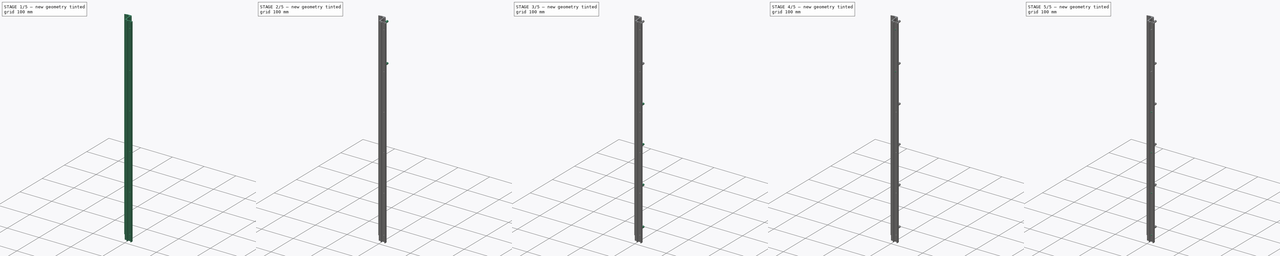
[diagram: build sequence overview — one tinted view per stage of 5, left to right]
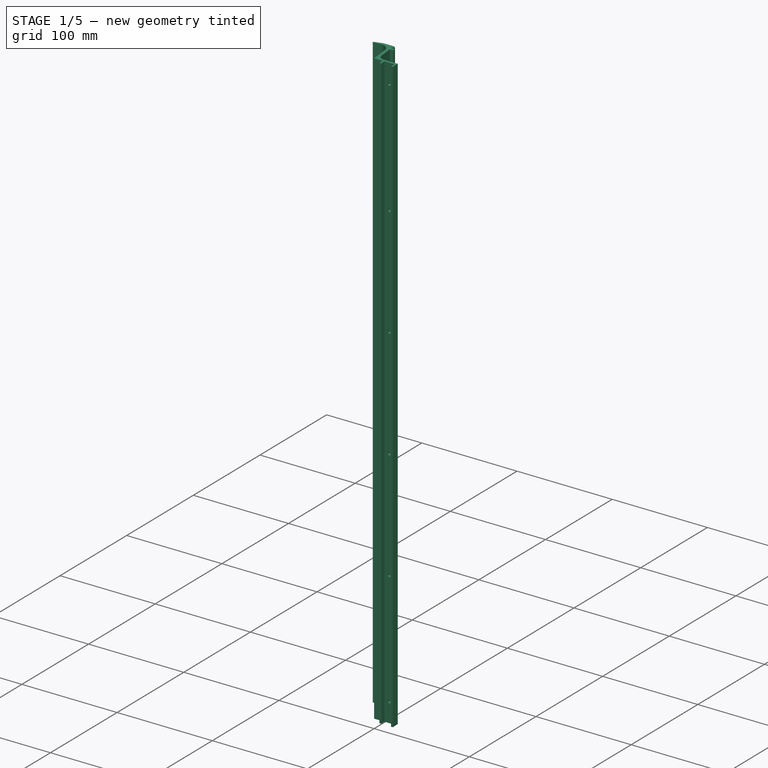
[diagram: stage 1 of 5 — iso view after this stage's code; geometry added in this stage tinted green]
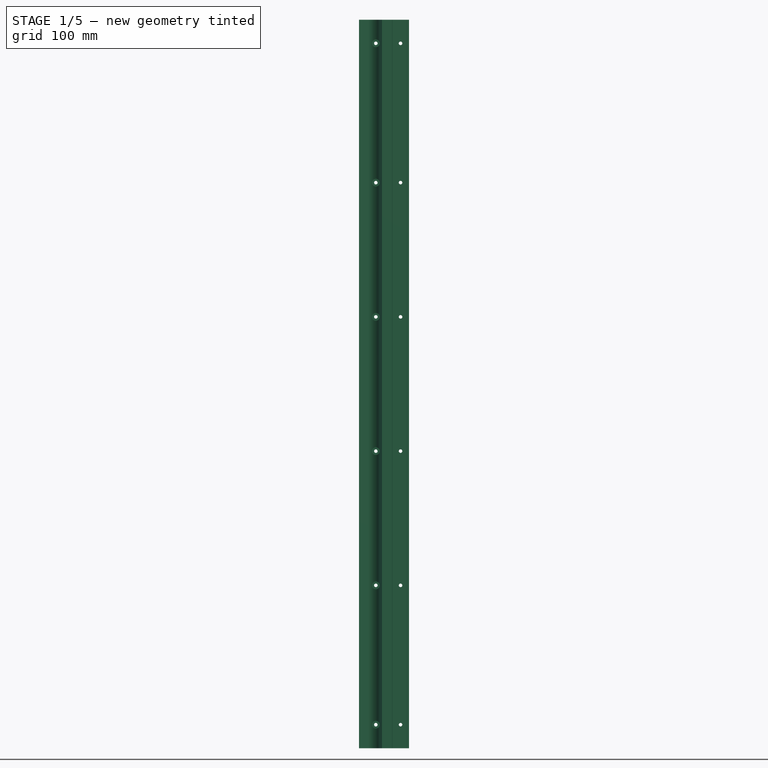
[diagram: stage 1 of 5 — front view after this stage's code; geometry added in this stage tinted green]
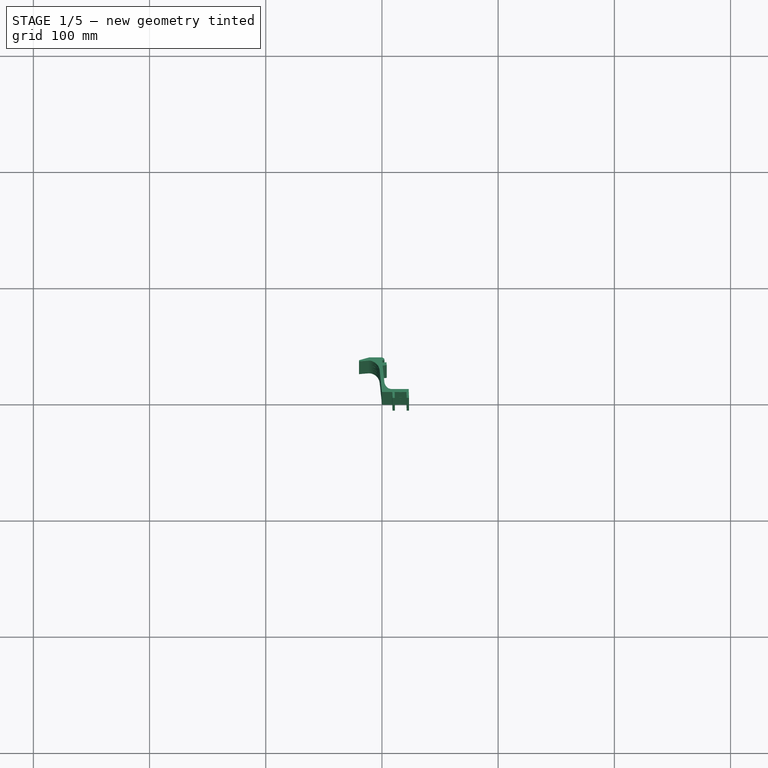
[diagram: stage 1 of 5 — top view after this stage's code; geometry added in this stage tinted green]
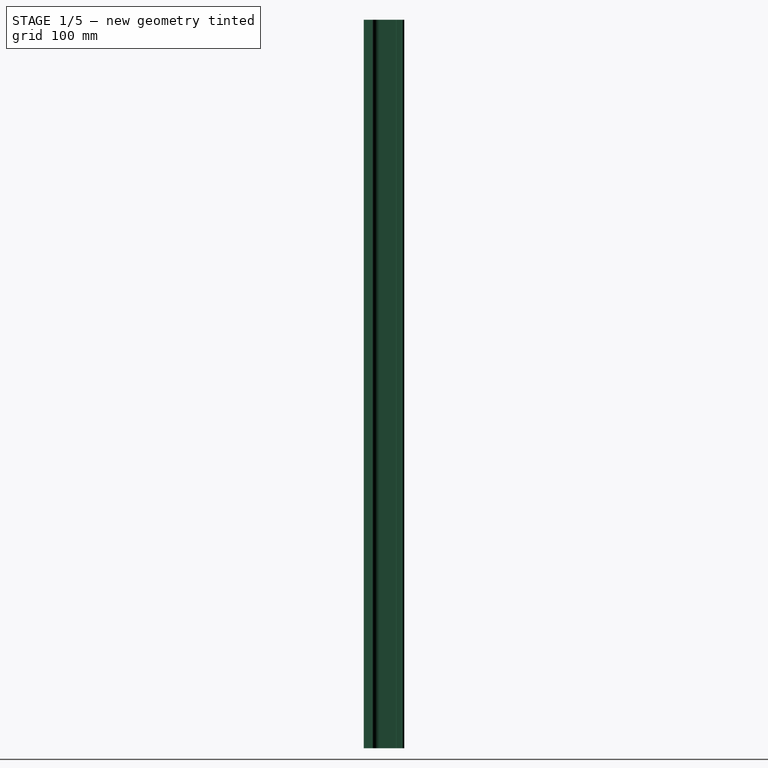
[diagram: stage 1 of 5 — right view after this stage's code; geometry added in this stage tinted green]
FCSTD DOCUMENT  (FreeCAD 1.0R39319 (Git))
Label: Extrusion
License: All rights reserved
LicenseURL: https://en.wikipedia.org/wiki/All_rights_reserved
objects: Part::FeaturePython×22, Sketcher::SketchObject×5, PartDesign::Pocket×4, PartDesign::Pad×1, Part::Part2DObjectPython×1, PartDesign::Body×1, Part::Extrusion×1, App::Part×1, App::DocumentObjectGroup×1
note: 50 computed .brp shape members not serialized (recipe doc carries the construction recipe); baked Part::Feature solids carry a one-line shape summary decoded from their .brp

FEATURE [Sketcher::SketchObject] Sketch  label="Sketch - Side profile"
  ArcFitTolerance = 1e-06
  FullyConstrained = true
  MakeInternals = false
  sketch-geometry (32):
    g0: LineSegment StartX=0 StartY=0 StartZ=0 EndX=8.89 EndY=0 EndZ=0
    g1: LineSegment StartX=8.89 StartY=0 StartZ=0 EndX=9.06729 EndY=-5.07691 EndZ=0
    g2: LineSegment StartX=9.06729 StartY=-5.07691 StartZ=0 EndX=11.0993 EndY=-5.07691 EndZ=0
    g3: LineSegment StartX=11.0993 StartY=-5.07691 StartZ=0 EndX=10.922 EndY=0 EndZ=0
    g4: LineSegment StartX=10.922 StartY=0 StartZ=0 EndX=21.082 EndY=0 EndZ=0
    g5: LineSegment StartX=21.082 StartY=0 StartZ=0 EndX=21.2593 EndY=-5.07691 EndZ=0
    g6: LineSegment StartX=21.2593 StartY=-5.07691 StartZ=0 EndX=23.2913 EndY=-5.07691 EndZ=0
    g7: LineSegment StartX=23.0254 StartY=2.53845 StartZ=0 EndX=8.72877 EndY=2.53845 EndZ=0
    g8: LineSegment StartX=3.86347 StartY=25.6444 StartZ=0 EndX=0.32677 EndY=25.2744 EndZ=0
    g9: LineSegment StartX=0.32677 StartY=25.2744 StartZ=0 EndX=0.11534 EndY=27.2953 EndZ=0
    g10: LineSegment StartX=0.11534 StartY=27.2953 StartZ=0 EndX=2.13631 EndY=27.5068 EndZ=0
    g11: LineSegment StartX=2.13631 StartY=27.5068 StartZ=0 EndX=2.0306 EndY=28.5173 EndZ=0
    g12: LineSegment StartX=2.0306 StartY=28.5173 StartZ=0 EndX=0.45205 EndY=29.7968 EndZ=0
    g13: LineSegment StartX=0.45205 StartY=29.7968 StartZ=0 EndX=-10.978 EndY=29.7968 EndZ=0
    g14: LineSegment StartX=-10.978 StartY=29.7968 StartZ=0 EndX=-19.7807 EndY=27.322 EndZ=0
    g15: LineSegment StartX=-19.7807 StartY=27.322 StartZ=0 EndX=-19.7807 EndY=26.306 EndZ=0
    g16: LineSegment StartX=-19.7807 StartY=26.306 StartZ=0 EndX=-11.4639 EndY=27.0305 EndZ=0
    g17: LineSegment StartX=-11.4639 StartY=27.0305 StartZ=0 EndX=-11.3281 EndY=27.0305 EndZ=0
    g18: LineSegment StartX=23.0254 StartY=2.53845 StartZ=0 EndX=23.2913 EndY=-5.07691 EndZ=0
    g19: LineSegment StartX=0 StartY=0 StartZ=0 EndX=-1.94342 EndY=18.5764 EndZ=0
    g20: LineSegment StartX=3.86347 StartY=25.6444 StartZ=0 EndX=4.12776 EndY=23.1182 EndZ=0
    g21: LineSegment StartX=0.591057 StartY=22.7482 StartZ=0 EndX=2.07862 EndY=8.52917 EndZ=0
    g22: LineSegment StartX=0.591057 StartY=22.7482 StartZ=0 EndX=4.12776 EndY=23.1182 EndZ=0
    g23: LineSegment [constr] StartX=4.12776 StartY=23.1182 StartZ=0 EndX=23.0254 EndY=2.53845 EndZ=0
    g24: LineSegment [constr] StartX=-19.7807 StartY=26.306 StartZ=0 EndX=0 EndY=0 EndZ=0
    g25: LineSegment [constr] StartX=2.0306 StartY=28.5173 StartZ=0 EndX=-19.7807 EndY=27.322 EndZ=0
    g26: ArcOfCircle CenterX=8.72877 CenterY=9.22489 CenterZ=0 NormalX=0 NormalY=0 NormalZ=1 AngleXU=0 Radius=6.68644 StartAngle=3.24583 EndAngle=4.71239
    g27: GeomPoint [constr] X=2.70536 Y=2.53845 Z=0
    g28: LineSegment [constr] StartX=8.72877 StartY=9.22489 StartZ=0 EndX=2.70536 EndY=2.53845 EndZ=0
    g29: ArcOfCircle CenterX=-11.3281 CenterY=17.5946 CenterZ=0 NormalX=0 NormalY=0 NormalZ=1 AngleXU=0 Radius=9.4359 StartAngle=0.104239 EndAngle=1.5708
    g30: GeomPoint [constr] X=-2.82787 Y=27.0305 Z=0
    g31: LineSegment [constr] StartX=-2.82787 StartY=27.0305 StartZ=0 EndX=-11.3281 EndY=17.5946 EndZ=0
  constraints (89):
    c: Coincident(g0,g-1)
    c: Coincident(g1,g0)
    c: Coincident(g2,g1)
    c: Coincident(g3,g2)
    c: Coincident(g4,g3)
    c: Coincident(g5,g4)
    c: Coincident(g6,g5)
    c: Horizontal(g6)
    c: Horizontal(g7)
    c: Coincident(g9,g8)
    c: Coincident(g10,g9)
    c: Coincident(g11,g10)
    c: Coincident(g13,g12)
    c: Horizontal(g13)
    c: Coincident(g14,g13)
    c: Coincident(g15,g14)
    c: Coincident(g16,g15)
    c: Coincident(g17,g16)
    c: Horizontal(g17)
    c: DistanceX(g2,g2) = 2.032
    c: Equal(g2,g6)
    c: Distance(g0) = 8.89
    c: Horizontal(g4)
    c: Horizontal(g2)
    c: Horizontal(g0)
    c: Distance(g1) = 5.08
    c: Angle(g0,g1) = 1.6057
    c: Angle(g4,g5) = 1.6057
    c: Parallel(g1,g3)
    c: Equal(g3,g1)
    c: Equal(g5,g1)
    c: Coincident(g18,g7)
    c: Coincident(g18,g6)
    c: Distance(g18) = 7.62
    c: Distance(g1,g5) = 12.192
    c: Parallel(g18,g5)
    c: DistanceX(g27,g7) = 20.32
    c: Coincident(g19,g0)
    c: Coincident(g20,g8)
    c: Distance(g21,g27) = 20.32
    c: Parallel(g19,g21)
    c: Distance(g20,g21) = 3.556
    c: Distance(g20,g20) = 2.54
    c: Parallel(g9,g19)
    c: Parallel(g20,g19)
    c: Coincident(g22,g21)
    c: Coincident(g22,g20)
    c: Equal(g8,g22)
    c: Angle(g21,g22) = 1.5708
    c: Distance(g9,g9) = 2.032
    c: Angle(g8,g9) = 1.5708
    c: Distance(g19,g30) = 27.178
    c: Coincident(g23,g20)
    c: Coincident(g23,g7)
    c: Distance(g23,g23) = 27.94
    c: Parallel(g8,g10)
    c: Distance(g10,g10) = 2.032
    c: Distance(g11,g11) = 1.016
    c: Coincident(g12,g11)
    c: Parallel(g21,g11)
    c: Angle(g10,g12) = 2.35619
    c: Distance(g12,g12) = 2.032
    c: DistanceX(g13,g13) = 11.43
    c: Distance(g14,g14) = 9.144
    c: Distance(g15,g15) = 1.016
    c: Distance(g17,g30) = 8.636
    c: Parallel(g15,g-2)
    c: Coincident(g24,g15)
    c: Coincident(g24,g0)
    c: Distance(g24,g24) = 32.9132
    c: Coincident(g25,g11)
    c: Coincident(g25,g14)
    c: Distance(g25,g25) = 21.844
    c: PointOnObject(g27,g21)
    c: PointOnObject(g27,g7)
    c: Tangent(g21,g26) = -1.5708
    c: Tangent(g7,g26) = 1.5708
    c: Distance(g26,g0) = 12.7
    c: Coincident(g28,g26)
    c: Coincident(g28,g27)
    c: PointOnObject(g30,g17)
    c: PointOnObject(g30,g19)
    c: Tangent(g17,g29) = 1.5708
    c: Tangent(g19,g29) = -1.5708
    c: Coincident(g31,g30)
    c: Coincident(g31,g29)
    c: Distance(g31,g31) = 12.7
    c: DistanceX(g2,g5) = 10.16
    c: Distance(g0,g3) = 10.922
FEATURE [PartDesign::Pad] Pad  label="Pad - Body Length"
  Direction = (0,0,1)
  Length = 627
  Length2 = 10
  Profile = -> Sketch
  ReferenceAxis = -> Sketch [N_Axis]
  Refine = true
  Suppressed = false
  Type = 0
FEATURE [Sketcher::SketchObject] Sketch001  label="Mounting Holes"
  ArcFitTolerance = 1e-06
  AttachmentSupport = -> [Pad]
  ExternalGeometry = -> [Sketch,Pad]
  FullyConstrained = true
  MakeInternals = false
  MapMode = 5
  Placement = pos=(0,0,0) rot=(1,0,0;1.5708rad)
  sketch-geometry (19):
    g0: LineSegment [constr] StartX=10.922 StartY=0 StartZ=0 EndX=21.082 EndY=0 EndZ=0
    g1: LineSegment [constr] StartX=21.082 StartY=0 StartZ=0 EndX=21.082 EndY=627 EndZ=0
    g2: LineSegment [constr] StartX=10.922 StartY=627 StartZ=0 EndX=10.922 EndY=0 EndZ=0
    g3: Circle CenterX=16.002 CenterY=20.32 CenterZ=0 NormalX=0 NormalY=0 NormalZ=1 AngleXU=0 Radius=1.524
    g4: Circle CenterX=16.002 CenterY=140.208 CenterZ=0 NormalX=0 NormalY=0 NormalZ=1 AngleXU=0 Radius=1.524
    g5: Circle CenterX=16.002 CenterY=255.736 CenterZ=0 NormalX=0 NormalY=0 NormalZ=1 AngleXU=0 Radius=1.524
    g6: Circle CenterX=16.002 CenterY=371.264 CenterZ=0 NormalX=0 NormalY=0 NormalZ=1 AngleXU=0 Radius=1.524
    g7: Circle CenterX=16.002 CenterY=486.792 CenterZ=0 NormalX=0 NormalY=0 NormalZ=1 AngleXU=0 Radius=1.524
    g8: Circle CenterX=16.002 CenterY=606.68 CenterZ=0 NormalX=0 NormalY=0 NormalZ=1 AngleXU=0 Radius=1.524
    g9: LineSegment [constr] StartX=16.002 StartY=140.208 StartZ=0 EndX=16.002 EndY=20.32 EndZ=0
    g10: LineSegment [constr] StartX=10.922 StartY=627 StartZ=0 EndX=16.002 EndY=627 EndZ=0
    g11: LineSegment [constr] StartX=21.082 StartY=627 StartZ=0 EndX=16.002 EndY=627 EndZ=0
    g12: LineSegment [constr] StartX=16.002 StartY=20.32 StartZ=0 EndX=16.002 EndY=140.208 EndZ=0
    g13: LineSegment [constr] StartX=16.002 StartY=20.32 StartZ=0 EndX=16.002 EndY=0 EndZ=0
    g14: LineSegment [constr] StartX=16.002 StartY=140.208 StartZ=0 EndX=16.002 EndY=255.736 EndZ=0
    g15: LineSegment [constr] StartX=16.002 StartY=255.736 StartZ=0 EndX=16.002 EndY=371.264 EndZ=0
    g16: LineSegment [constr] StartX=16.002 StartY=371.264 StartZ=0 EndX=16.002 EndY=486.792 EndZ=0
    g17: LineSegment [constr] StartX=16.002 StartY=606.68 StartZ=0 EndX=16.002 EndY=627 EndZ=0
    g18: LineSegment [constr] StartX=16.002 StartY=486.792 StartZ=0 EndX=16.002 EndY=606.68 EndZ=0
  constraints (50):
    c: Vertical(g1)
    c: Coincident(g2,g0)
    c: Coincident(g0,g1)
    c: Coincident(g0,g-3)
    c: Radius(g3) = 1.524  'screwHoleRad'
    c: DistanceY(g8,g10) = 20.32
    c: Coincident(g9,g4)
    c: Coincident(g9,g3)
    c: Coincident(g10,g2)
    c: Horizontal(g10)
    c: Coincident(g11,g1)
    c: Horizontal(g11)
    c: Equal(g10,g11)
    c: Equal(g3,g4)
    c: Equal(g4,g5)
    c: Coincident(g12,g3)
    c: Coincident(g12,g4)
    c: Coincident(g13,g3)
    c: Symmetric(g0,g0,g13)
    c: Vertical(g13)
    c: Coincident(g14,g4)
    c: Coincident(g14,g5)
    c: Vertical(g14)
    c: Coincident(g15,g5)
    c: Coincident(g15,g6)
    c: Vertical(g15)
    c: Coincident(g16,g6)
    c: Coincident(g16,g7)
    c: Vertical(g16)
    c: Vertical(g9)
    c: DistanceY(g13,g13) = 20.32
    c: DistanceY(g9,g9) = 119.888
    c: Coincident(g11,g10)
    c: Coincident(g17,g8)
    c: Coincident(g17,g10)
    c: Vertical(g17)
    c: Coincident(g18,g7)
    c: Coincident(g18,g8)
    c: DistanceY(g7,g8) = 119.888
    c: DistanceY(g6,g7) = 115.528
    c: DistanceY(g5,g6) = 115.528
    c: DistanceY(g4,g5) = 115.528
    c: Equal(g9,g18)
    c: Equal(g16,g15)
    c: Equal(g15,g14)
    c: Equal(g6,g7)
    c: Equal(g7,g8)
    c: Equal(g8,g5)
    c: Coincident(g2,g-4)
    c: Coincident(g0,g-3)
FEATURE [PartDesign::Pocket] Pocket
  BaseFeature = -> Pad
  Direction = (0,1,-2e-16)
  Length = 5
  Length2 = 5
  Profile = -> Sketch001
  ReferenceAxis = -> Sketch001 [N_Axis]
  Refine = true
  Suppressed = false
  Type = 1
FEATURE [Sketcher::SketchObject] Sketch002  label="Spacer Holes"
  ArcFitTolerance = 1e-06
  AttachmentSupport = -> [Pocket]
  ExternalGeometry = -> [Pocket]
  FullyConstrained = true
  MakeInternals = false
  MapMode = 5
  Placement = pos=(0,29.7968,0) rot=(0,0.707107,0.707107;3.14159rad)
  sketch-geometry (19):
    g0: LineSegment [constr] StartX=-0.45205 StartY=0 StartZ=0 EndX=10.978 EndY=0 EndZ=0
    g1: LineSegment [constr] StartX=10.978 StartY=0 StartZ=0 EndX=10.978 EndY=627 EndZ=0
    g2: LineSegment [constr] StartX=-0.45205 StartY=627 StartZ=0 EndX=-0.45205 EndY=0 EndZ=0
    g3: Circle CenterX=5.26295 CenterY=20.32 CenterZ=0 NormalX=0 NormalY=0 NormalZ=1 AngleXU=0 Radius=1.524
    g4: Circle CenterX=5.26295 CenterY=140.208 CenterZ=0 NormalX=0 NormalY=0 NormalZ=1 AngleXU=0 Radius=1.524
    g5: Circle CenterX=5.26295 CenterY=255.736 CenterZ=0 NormalX=0 NormalY=0 NormalZ=1 AngleXU=0 Radius=1.524
    g6: Circle CenterX=5.26295 CenterY=371.264 CenterZ=0 NormalX=0 NormalY=0 NormalZ=1 AngleXU=0 Radius=1.524
    g7: Circle CenterX=5.26295 CenterY=486.792 CenterZ=0 NormalX=0 NormalY=0 NormalZ=1 AngleXU=0 Radius=1.524
    g8: Circle CenterX=5.26295 CenterY=606.68 CenterZ=0 NormalX=0 NormalY=0 NormalZ=1 AngleXU=0 Radius=1.524
    g9: LineSegment [constr] StartX=5.26295 StartY=140.208 StartZ=0 EndX=5.26295 EndY=20.32 EndZ=0
    g10: LineSegment [constr] StartX=-0.45205 StartY=627 StartZ=0 EndX=5.26295 EndY=627 EndZ=0
    g11: LineSegment [constr] StartX=10.978 StartY=627 StartZ=0 EndX=5.26295 EndY=627 EndZ=0
    g12: LineSegment [constr] StartX=5.26295 StartY=20.32 StartZ=0 EndX=5.26295 EndY=140.208 EndZ=0
    g13: LineSegment [constr] StartX=5.26295 StartY=20.32 StartZ=0 EndX=5.26295 EndY=0 EndZ=0
    g14: LineSegment [constr] StartX=5.26295 StartY=140.208 StartZ=0 EndX=5.26295 EndY=255.736 EndZ=0
    g15: LineSegment [constr] StartX=5.26295 StartY=255.736 StartZ=0 EndX=5.26295 EndY=371.264 EndZ=0
    g16: LineSegment [constr] StartX=5.26295 StartY=371.264 StartZ=0 EndX=5.26295 EndY=486.792 EndZ=0
    g17: LineSegment [constr] StartX=5.26295 StartY=606.68 StartZ=0 EndX=5.26295 EndY=627 EndZ=0
    g18: LineSegment [constr] StartX=5.26295 StartY=486.792 StartZ=0 EndX=5.26295 EndY=606.68 EndZ=0
  constraints (50):
    c: Vertical(g1)
    c: Coincident(g2,g0)
    c: Coincident(g0,g1)
    c: Radius(g3) = 1.524  'screwHoleRad'
    c: DistanceY(g8,g10) = 20.32
    c: Coincident(g9,g4)
    c: Coincident(g9,g3)
    c: Coincident(g10,g2)
    c: Horizontal(g10)
    c: Coincident(g11,g1)
    c: Horizontal(g11)
    c: Equal(g10,g11)
    c: Equal(g3,g4)
    c: Equal(g4,g5)
    c: Coincident(g12,g3)
    c: Coincident(g12,g4)
    c: Coincident(g13,g3)
    c: Symmetric(g0,g0,g13)
    c: Coincident(g14,g4)
    c: Coincident(g14,g5)
    c: Vertical(g14)
    c: Coincident(g15,g5)
    c: Coincident(g15,g6)
    c: Vertical(g15)
    c: Coincident(g16,g6)
    c: Coincident(g16,g7)
    c: Vertical(g16)
    c: Vertical(g9)
    c: DistanceY(g13,g13) = 20.32
    c: DistanceY(g9,g9) = 119.888
    c: Coincident(g11,g10)
    c: Coincident(g17,g8)
    c: Coincident(g17,g10)
    c: Vertical(g17)
    c: Coincident(g18,g7)
    c: Coincident(g18,g8)
    c: DistanceY(g7,g8) = 119.888
    c: DistanceY(g6,g7) = 115.528
    c: DistanceY(g5,g6) = 115.528
    c: DistanceY(g4,g5) = 115.528
    c: Equal(g9,g18)
    c: Equal(g16,g15)
    c: Equal(g15,g14)
    c: Equal(g6,g7)
    c: Equal(g7,g8)
    c: Equal(g8,g5)
    c: Coincident(g0,g-3)
    c: Coincident(g0,g-4)
    c: Coincident(g2,g-4)
    c: Vertical(g13)
FEATURE [PartDesign::Pocket] Pocket001  label="Spacer holes pocket"
  BaseFeature = -> Pocket
  Direction = (0,-1,2e-16)
  Length = 5
  Length2 = 5
  Profile = -> Sketch002
  ReferenceAxis = -> Sketch002 [N_Axis]
  Refine = true
  Suppressed = false
  Type = 1
FEATURE [Sketcher::SketchObject] Sketch003  label="Spacer Holes Counter Bore"
  ArcFitTolerance = 1e-06
  AttachmentOffset = pos=(0,0,-11.43) rot=(0,0,1;0rad)
  AttachmentSupport = -> [Pocket]
  ExternalGeometry = -> [Pocket]
  FullyConstrained = true
  MakeInternals = false
  MapMode = 5
  Placement = pos=(0,18.3668,2.5e-15) rot=(0,0.707107,0.707107;3.14159rad)
  sketch-geometry (19):
    g0: LineSegment [constr] StartX=-0.45205 StartY=0 StartZ=0 EndX=10.978 EndY=0 EndZ=0
    g1: LineSegment [constr] StartX=10.978 StartY=0 StartZ=0 EndX=10.978 EndY=627 EndZ=0
    g2: LineSegment [constr] StartX=-0.45205 StartY=627 StartZ=0 EndX=-0.45205 EndY=0 EndZ=0
    g3: Circle CenterX=5.26295 CenterY=20.32 CenterZ=0 NormalX=0 NormalY=0 NormalZ=1 AngleXU=0 Radius=3.302
    g4: Circle CenterX=5.26295 CenterY=140.208 CenterZ=0 NormalX=0 NormalY=0 NormalZ=1 AngleXU=0 Radius=3.302
    g5: Circle CenterX=5.26295 CenterY=255.736 CenterZ=0 NormalX=0 NormalY=0 NormalZ=1 AngleXU=0 Radius=3.302
    g6: Circle CenterX=5.26295 CenterY=371.264 CenterZ=0 NormalX=0 NormalY=0 NormalZ=1 AngleXU=0 Radius=3.302
    g7: Circle CenterX=5.26295 CenterY=486.792 CenterZ=0 NormalX=0 NormalY=0 NormalZ=1 AngleXU=0 Radius=3.302
    g8: Circle CenterX=5.26295 CenterY=606.68 CenterZ=0 NormalX=0 NormalY=0 NormalZ=1 AngleXU=0 Radius=3.302
    g9: LineSegment [constr] StartX=5.26295 StartY=140.208 StartZ=0 EndX=5.26295 EndY=20.32 EndZ=0
    g10: LineSegment [constr] StartX=-0.45205 StartY=627 StartZ=0 EndX=5.26295 EndY=627 EndZ=0
    g11: LineSegment [constr] StartX=10.978 StartY=627 StartZ=0 EndX=5.26295 EndY=627 EndZ=0
    g12: LineSegment [constr] StartX=5.26295 StartY=20.32 StartZ=0 EndX=5.26295 EndY=140.208 EndZ=0
    g13: LineSegment [constr] StartX=5.26295 StartY=20.32 StartZ=0 EndX=5.26295 EndY=0 EndZ=0
    g14: LineSegment [constr] StartX=5.26295 StartY=140.208 StartZ=0 EndX=5.26295 EndY=255.736 EndZ=0
    g15: LineSegment [constr] StartX=5.26295 StartY=255.736 StartZ=0 EndX=5.26295 EndY=371.264 EndZ=0
    g16: LineSegment [constr] StartX=5.26295 StartY=371.264 StartZ=0 EndX=5.26295 EndY=486.792 EndZ=0
    g17: LineSegment [constr] StartX=5.26295 StartY=606.68 StartZ=0 EndX=5.26295 EndY=627 EndZ=0
    g18: LineSegment [constr] StartX=5.26295 StartY=486.792 StartZ=0 EndX=5.26295 EndY=606.68 EndZ=0
  constraints (50):
    c: Vertical(g1)
    c: Coincident(g2,g0)
    c: Coincident(g0,g1)
    c: Radius(g3) = 3.302  'screwHoleRad'
    c: DistanceY(g8,g10) = 20.32
    c: Coincident(g9,g4)
    c: Coincident(g9,g3)
    c: Coincident(g10,g2)
    c: Horizontal(g10)
    c: Coincident(g11,g1)
    c: Horizontal(g11)
    c: Equal(g10,g11)
    c: Equal(g3,g4)
    c: Equal(g4,g5)
    c: Coincident(g12,g3)
    c: Coincident(g12,g4)
    c: Coincident(g13,g3)
    c: Symmetric(g0,g0,g13)
    c: Coincident(g14,g4)
    c: Coincident(g14,g5)
    c: Vertical(g14)
    c: Coincident(g15,g5)
    c: Coincident(g15,g6)
    c: Vertical(g15)
    c: Coincident(g16,g6)
    c: Coincident(g16,g7)
    c: Vertical(g16)
    c: Vertical(g9)
    c: DistanceY(g13,g13) = 20.32
    c: DistanceY(g9,g9) = 119.888
    c: Coincident(g11,g10)
    c: Coincident(g17,g8)
    c: Coincident(g17,g10)
    c: Vertical(g17)
    c: Coincident(g18,g7)
    c: Coincident(g18,g8)
    c: DistanceY(g7,g8) = 119.888
    c: DistanceY(g6,g7) = 115.528
    c: DistanceY(g5,g6) = 115.528
    c: DistanceY(g4,g5) = 115.528
    c: Equal(g9,g18)
    c: Equal(g16,g15)
    c: Equal(g15,g14)
    c: Equal(g6,g7)
    c: Equal(g7,g8)
    c: Equal(g8,g5)
    c: Coincident(g0,g-3)
    c: Coincident(g0,g-4)
    c: Coincident(g2,g-4)
    c: Vertical(g13)
FEATURE [PartDesign::Pocket] Pocket002  label="Counter bore pocket"
  BaseFeature = -> Pocket001
  Direction = (0,-1,2e-16)
  Length = 9.398
  Length2 = 5
  Profile = -> Sketch003
  ReferenceAxis = -> Sketch003 [N_Axis]
  Refine = true
  Reversed = true
  Suppressed = false
  Type = 0
FEATURE [Part::Part2DObjectPython] ShapeString  # Draft 2D object (typed FeaturePython)
  AttachmentOffset = pos=(12.7,38.1,0) rot=(1,1,0;3.14159rad)
  AttachmentSupport = -> [Pocket002]
  FontFile = <path>
  Fuse = false
  Justification = 6
  JustificationReference = 0
  KeepLeftMargin = false
  MakeFace = true
  MapMode = 5
  ObliqueAngle = 0
  Placement = pos=(12.7,2.53845,38.1) rot=(0.57735,0.57735,0.57735;4.18879rad)
  ScaleToSize = true
  Size = 8.89
  String = www.playatari.com
  Tracking = 0
FEATURE [PartDesign::Pocket] Pocket003  label="Text pocket"
  BaseFeature = -> Pocket002
  Direction = (-1e-16,-1,3e-16)
  Length = 0.254
  Length2 = 5
  Profile = -> ShapeString
  ReferenceAxis = -> ShapeString [N_Axis]
  Refine = true
  Suppressed = false
  Type = 0
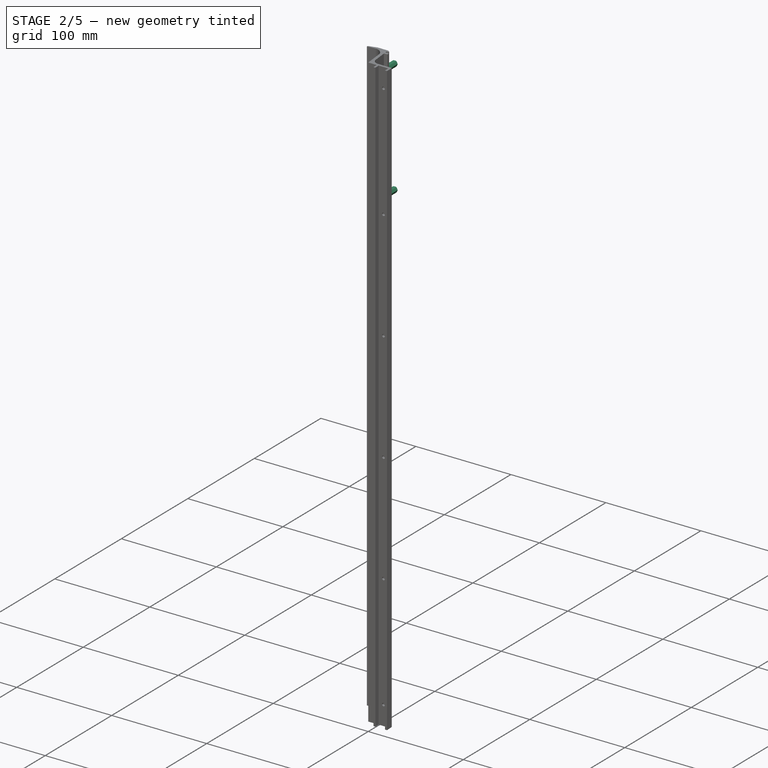
[diagram: stage 2 of 5 — iso view after this stage's code; geometry added in this stage tinted green]
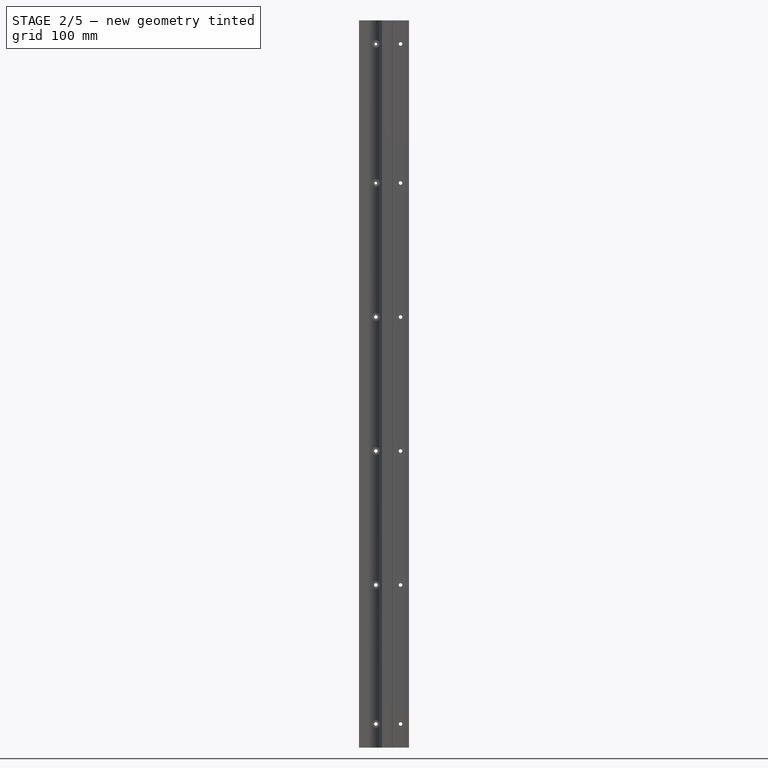
[diagram: stage 2 of 5 — front view after this stage's code; geometry added in this stage tinted green]
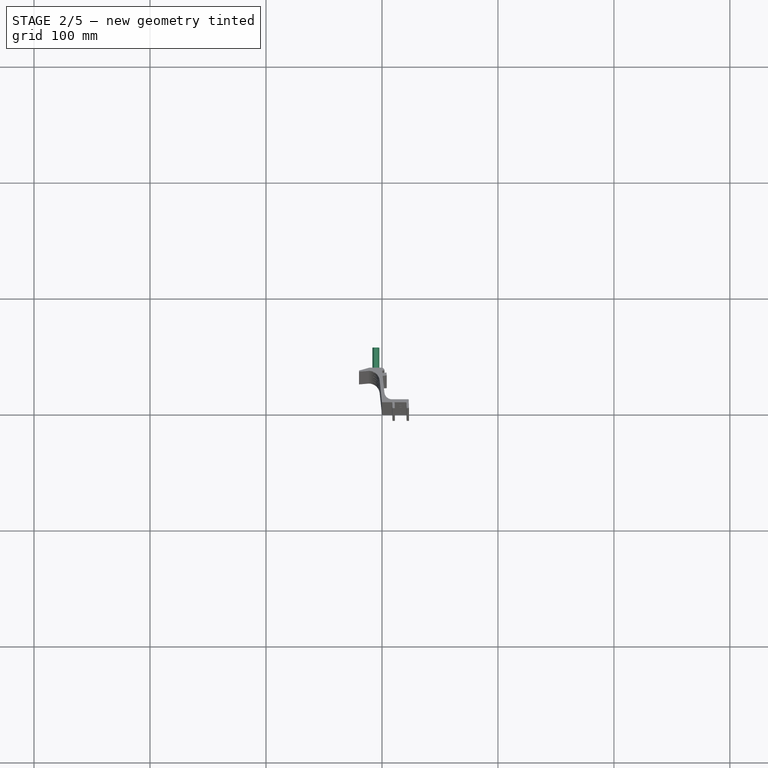
[diagram: stage 2 of 5 — top view after this stage's code; geometry added in this stage tinted green]
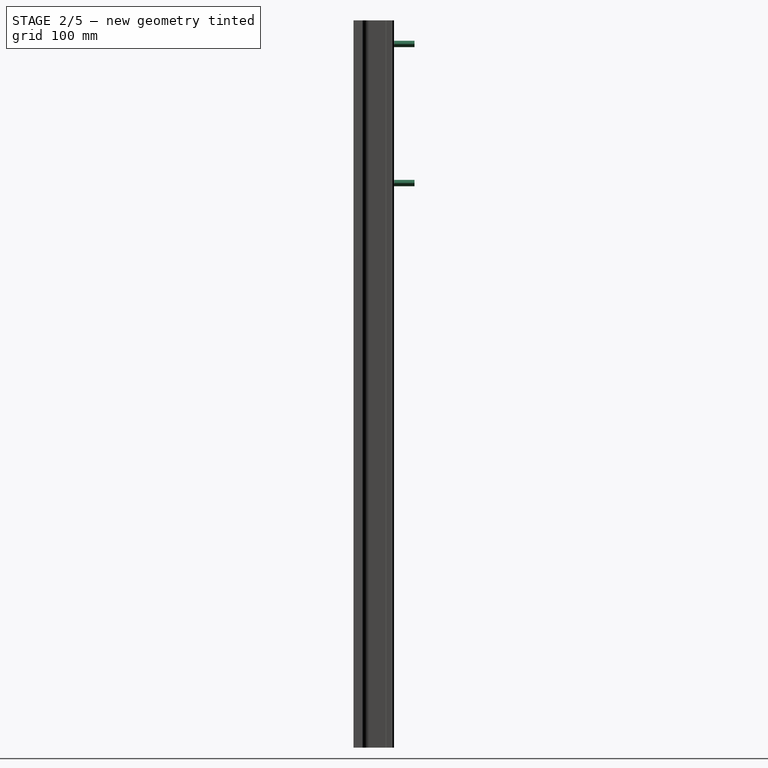
[diagram: stage 2 of 5 — right view after this stage's code; geometry added in this stage tinted green]
FEATURE [Part::FeaturePython] Spacer004  label="M3x17.78x5.5-Spacer109"  # WARN: FeaturePython — macro-defined, semantics opaque (R4)
  BaseObject = -> Body [Pocket002.Edge92]
  Diameter = 2
  Invert = false
  LeftHanded = false
  Length = 24
  LengthCustom = 17.78
  MatchOuter = false
  OffsetAngle = 0
  Placement = pos=(-5.26295,29.7968,486.792) rot=(-1,0,0;1.5708rad)
  Thread = false
  Type = 0
  Width = 1
FEATURE [Part::FeaturePython] Spacer005  label="M3x17.78x5.5-Spacer110"  # WARN: FeaturePython — macro-defined, semantics opaque (R4)
  BaseObject = -> Body [Pocket002.Edge91]
  Diameter = 2
  Invert = false
  LeftHanded = false
  Length = 24
  LengthCustom = 17.78
  MatchOuter = false
  OffsetAngle = 0
  Placement = pos=(-5.26295,29.7968,606.68) rot=(-1,0,0;1.5708rad)
  Thread = false
  Type = 0
  Width = 1
FEATURE [Sketcher::SketchObject] Sketch004  label="Split Sketch"
  ArcFitTolerance = 1e-06
  ExternalGeometry = -> [Pocket003]
  FullyConstrained = true
  MakeInternals = false
  MapMode = 5
  Placement = pos=(0,0,0) rot=(0.57735,0.57735,0.57735;2.0944rad)
  sketch-geometry (9):
    g0: LineSegment [constr] StartX=0 StartY=0 StartZ=0 EndX=0 EndY=209 EndZ=0
    g1: LineSegment [constr] StartX=0 StartY=209 StartZ=0 EndX=0 EndY=418 EndZ=0
    g2: LineSegment [constr] StartX=0 StartY=418 StartZ=0 EndX=0 EndY=627 EndZ=0
    g3: LineSegment StartX=0 StartY=418 StartZ=0 EndX=-63.5 EndY=418 EndZ=0
    g4: LineSegment StartX=0 StartY=418 StartZ=0 EndX=63.5 EndY=418 EndZ=0
    g5: LineSegment StartX=0 StartY=209 StartZ=0 EndX=-63.5 EndY=209 EndZ=0
    g6: LineSegment StartX=0 StartY=209 StartZ=0 EndX=63.5 EndY=209 EndZ=0
    g7: LineSegment [constr] StartX=-63.5 StartY=418 StartZ=0 EndX=-63.5 EndY=209 EndZ=0
    g8: LineSegment [constr] StartX=63.5 StartY=418 StartZ=0 EndX=63.5 EndY=209 EndZ=0
  constraints (25):
    c: Equal(g0,g1)
    c: Equal(g1,g2)
    c: PointOnObject(g2,g-3)
    c: PointOnObject(g2,g-2)
    c: Vertical(g1)
    c: Vertical(g0)
    c: Coincident(g0,g1)
    c: Coincident(g0,g-1)
    c: Coincident(g1,g2)
    c: Coincident(g3,g1)
    c: Horizontal(g3)
    c: Horizontal(g4)
    c: Coincident(g0,g6)
    c: Coincident(g5,g0)
    c: Horizontal(g6)
    c: Horizontal(g5)
    c: Coincident(g4,g1)
    c: Coincident(g7,g3)
    c: Coincident(g7,g5)
    c: Vertical(g7)
    c: Coincident(g8,g4)
    c: Coincident(g8,g6)
    c: Vertical(g8)
    c: Distance(g3,g3) = 63.5
    c: Distance(g6,g6) = 63.5
FEATURE [PartDesign::Body] Body
  AllowCompound = true
  Group = -> [Sketch,Pad,Sketch001,Pocket,Sketch002,Pocket001,Sketch003,Pocket002,ShapeString,Pocket003,Sketch004]
  Origin = -> Origin
  Tip = -> Pocket003
FEATURE [Part::Extrusion] Extrude
  Base = -> Sketch004
  Dir = (1,0,0)
  DirMode = 2
  FaceMakerClass = Part::FaceMakerBullseye
  FaceMakerMode = 3
  LengthFwd = 31.75
  LengthRev = 25.4
  Solid = false
  Symmetric = false
FEATURE [App::Part] Part  label="Screws and spacers"
  Group = -> [Screw,Screw001,Screw002,Screw003,Screw004,Screw005,Screw006,Screw007,Screw008,Screw009,Screw010,Screw011,Spacer,Spacer001,Spacer002,Spacer003,Spacer004,Spacer005]
  Origin = -> Origin001
FEATURE [Part::FeaturePython] Slice  # WARN: FeaturePython — macro-defined, semantics opaque (R4)
  Base = -> Pocket003
  Mode = 1
  Tolerance = 0
  Tools = -> [Extrude]
FEATURE [Part::FeaturePython] Slice_child0  label="Slice.Left"  # WARN: FeaturePython — macro-defined, semantics opaque (R4)
  Base = -> Slice
  FilterType = 1
  Invert = false
  OverrideMaxVal = 0
  WindowFrom = 80
  WindowTo = 100
  items = 0
FEATURE [Part::FeaturePython] Slice_child1  label="Slice.Centre"  # WARN: FeaturePython — macro-defined, semantics opaque (R4)
  Base = -> Slice
  FilterType = 1
  Invert = false
  OverrideMaxVal = 0
  WindowFrom = 80
  WindowTo = 100
  items = 1
FEATURE [Part::FeaturePython] Slice_child2  label="Slice.Right"  # WARN: FeaturePython — macro-defined, semantics opaque (R4)
  Base = -> Slice
  FilterType = 1
  Invert = false
  OverrideMaxVal = 0
  WindowFrom = 80
  WindowTo = 100
  items = 2
FEATURE [App::DocumentObjectGroup] GrExplode_Slice  label="Exploded Slice"
  Group = -> [Slice_child0,Slice_child1,Slice_child2]
note: 1 file-system path scrubbed to <path> (originals preserved in the JSON sidecar)
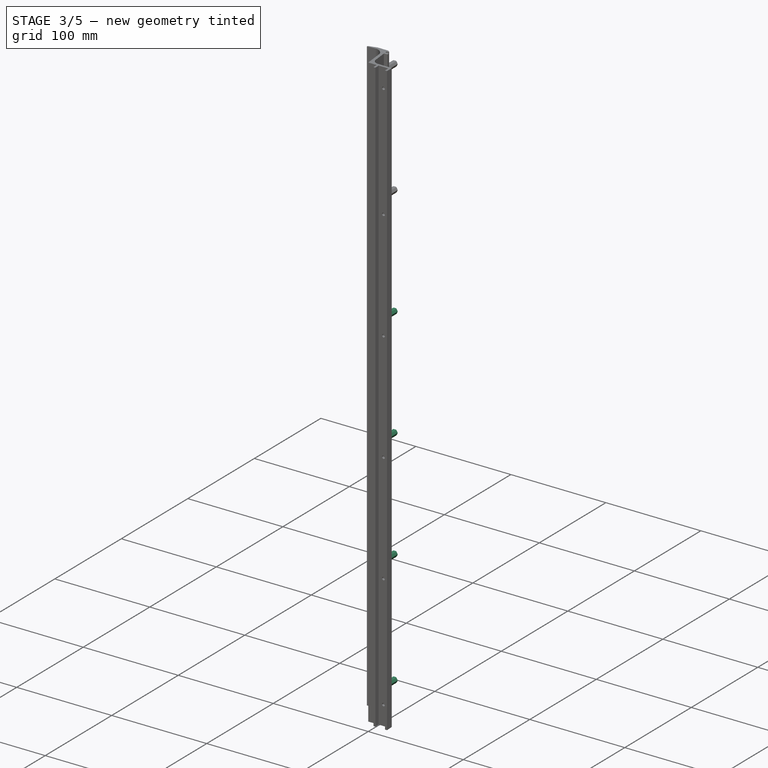
[diagram: stage 3 of 5 — iso view after this stage's code; geometry added in this stage tinted green]
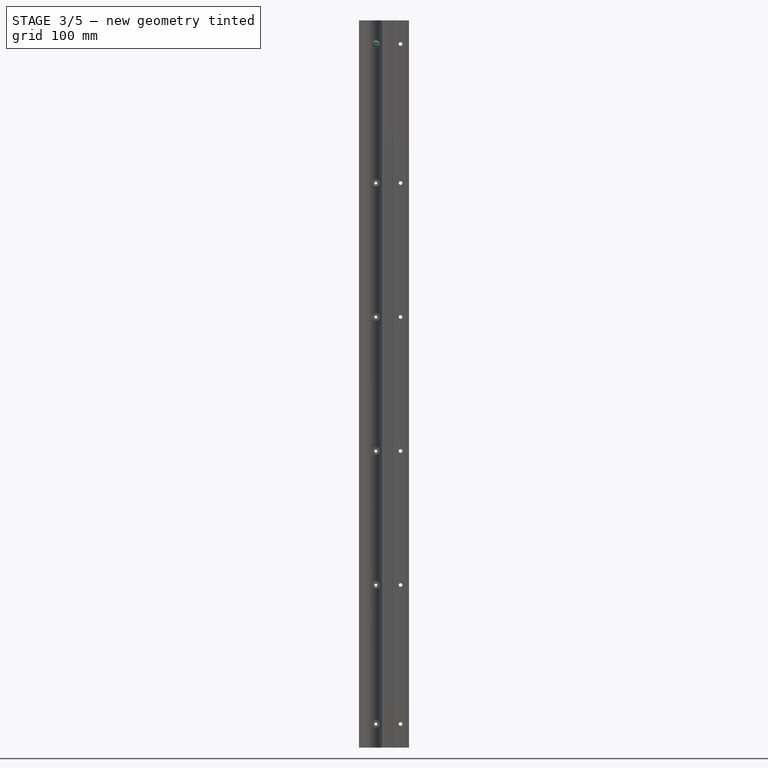
[diagram: stage 3 of 5 — front view after this stage's code; geometry added in this stage tinted green]
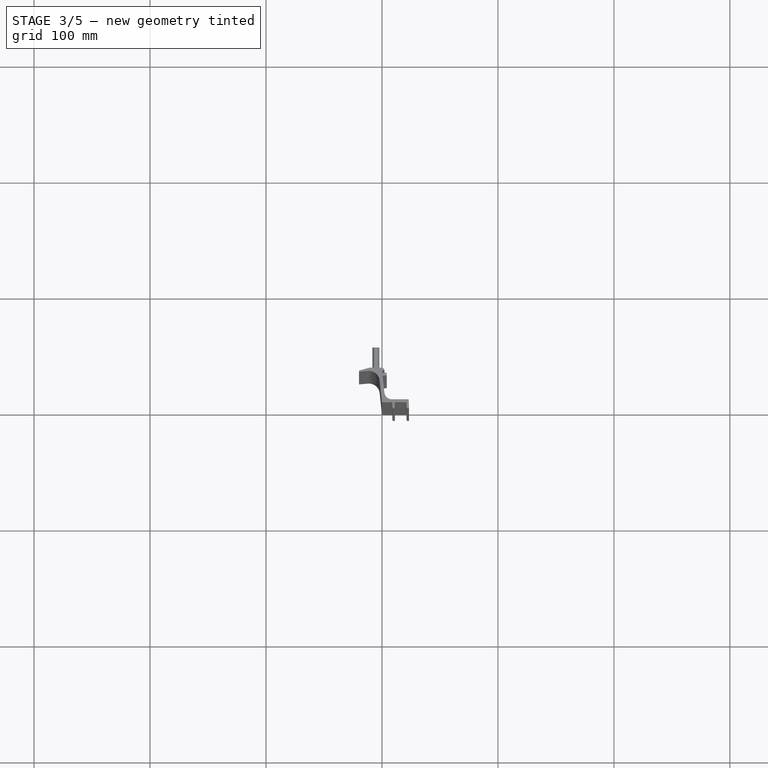
[diagram: stage 3 of 5 — top view after this stage's code; geometry added in this stage tinted green]
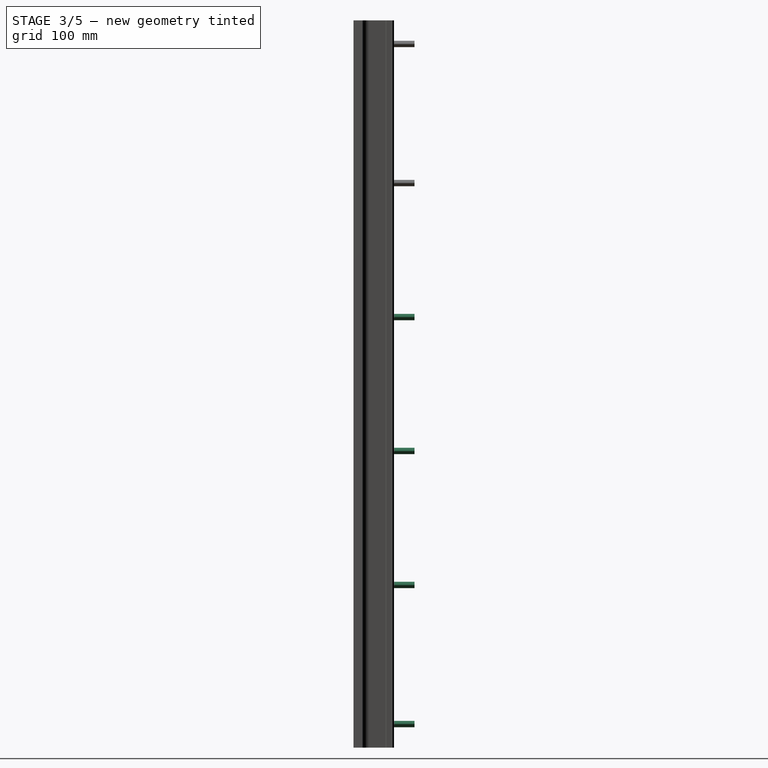
[diagram: stage 3 of 5 — right view after this stage's code; geometry added in this stage tinted green]
FEATURE [Part::FeaturePython] Screw011  label="ST2.9x9.5-Screw280"  # WARN: FeaturePython — macro-defined, semantics opaque (R4)
  BaseObject = -> Body [Pocket002.Edge119]
  Diameter = 2
  Invert = true
  LeftHanded = false
  Length = 1
  LengthCustom = 9.5
  MatchOuter = false
  OffsetAngle = 0
  Placement = pos=(-5.26295,27.7648,606.68) rot=(1,0,0;1.5708rad)
  Thread = false
  Type = 81
FEATURE [Part::FeaturePython] Spacer  label="M3x17.78x5.5-Spacer"  # WARN: FeaturePython — macro-defined, semantics opaque (R4)
  BaseObject = -> Body [Pocket002.Edge96]
  Diameter = 2
  Invert = false
  LeftHanded = false
  Length = 24
  LengthCustom = 17.78
  MatchOuter = false
  OffsetAngle = 0
  Placement = pos=(-5.26295,29.7968,20.32) rot=(-1,0,0;1.5708rad)
  Thread = false
  Type = 0
  Width = 1
FEATURE [Part::FeaturePython] Spacer001  label="M3x17.78x5.5-Spacer106"  # WARN: FeaturePython — macro-defined, semantics opaque (R4)
  BaseObject = -> Body [Pocket002.Edge95]
  Diameter = 2
  Invert = false
  LeftHanded = false
  Length = 24
  LengthCustom = 17.78
  MatchOuter = false
  OffsetAngle = 0
  Placement = pos=(-5.26295,29.7968,140.208) rot=(-1,0,0;1.5708rad)
  Thread = false
  Type = 0
  Width = 1
FEATURE [Part::FeaturePython] Spacer002  label="M3x17.78x5.5-Spacer107"  # WARN: FeaturePython — macro-defined, semantics opaque (R4)
  BaseObject = -> Body [Pocket002.Edge94]
  Diameter = 2
  Invert = false
  LeftHanded = false
  Length = 24
  LengthCustom = 17.78
  MatchOuter = false
  OffsetAngle = 0
  Placement = pos=(-5.26295,29.7968,255.736) rot=(-1,0,0;1.5708rad)
  Thread = false
  Type = 0
  Width = 1
FEATURE [Part::FeaturePython] Spacer003  label="M3x17.78x5.5-Spacer108"  # WARN: FeaturePython — macro-defined, semantics opaque (R4)
  BaseObject = -> Body [Pocket002.Edge93]
  Diameter = 2
  Invert = false
  LeftHanded = false
  Length = 24
  LengthCustom = 17.78
  MatchOuter = false
  OffsetAngle = 0
  Placement = pos=(-5.26295,29.7968,371.264) rot=(-1,0,0;1.5708rad)
  Thread = false
  Type = 0
  Width = 1
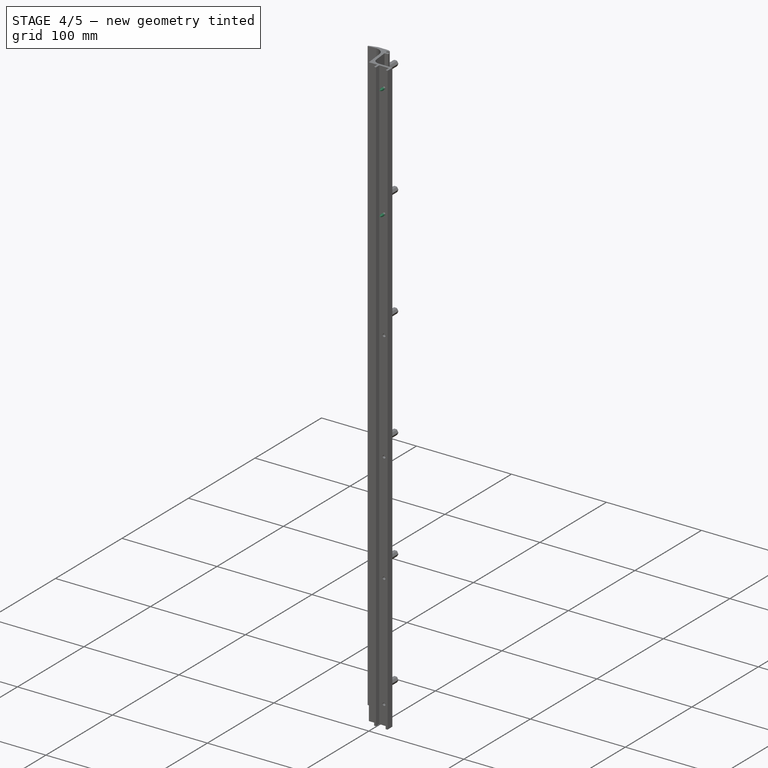
[diagram: stage 4 of 5 — iso view after this stage's code; geometry added in this stage tinted green]
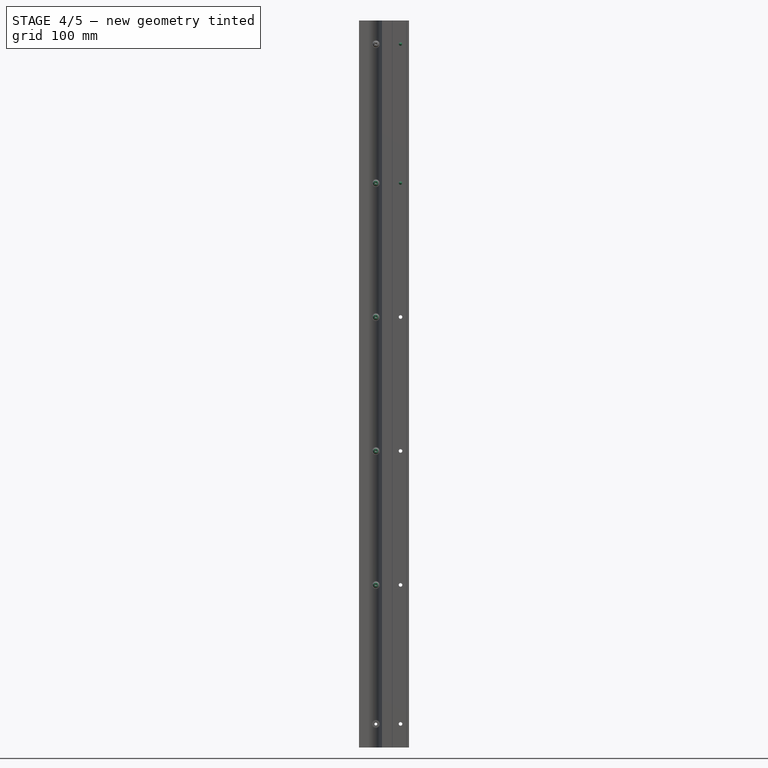
[diagram: stage 4 of 5 — front view after this stage's code; geometry added in this stage tinted green]
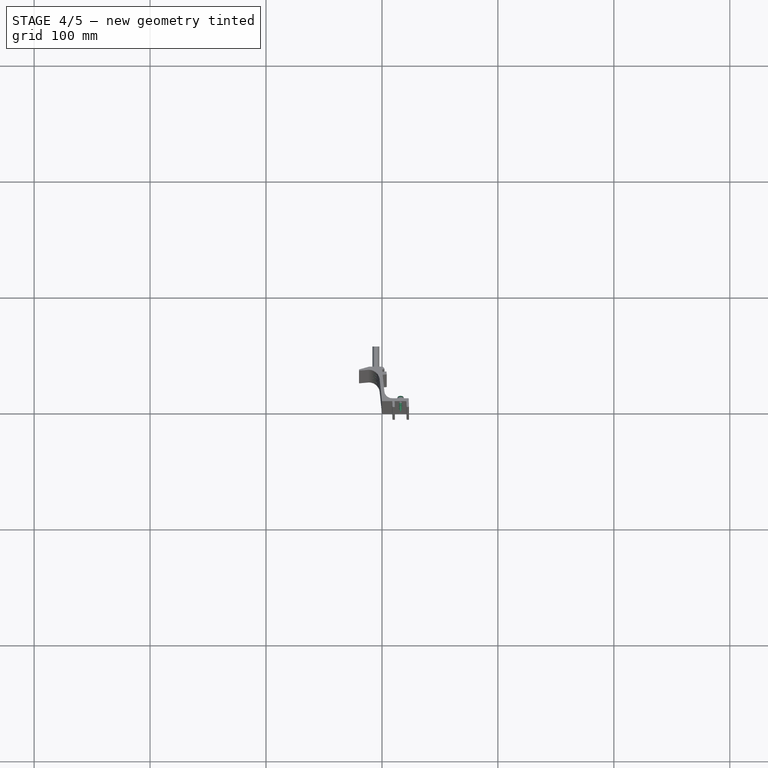
[diagram: stage 4 of 5 — top view after this stage's code; geometry added in this stage tinted green]
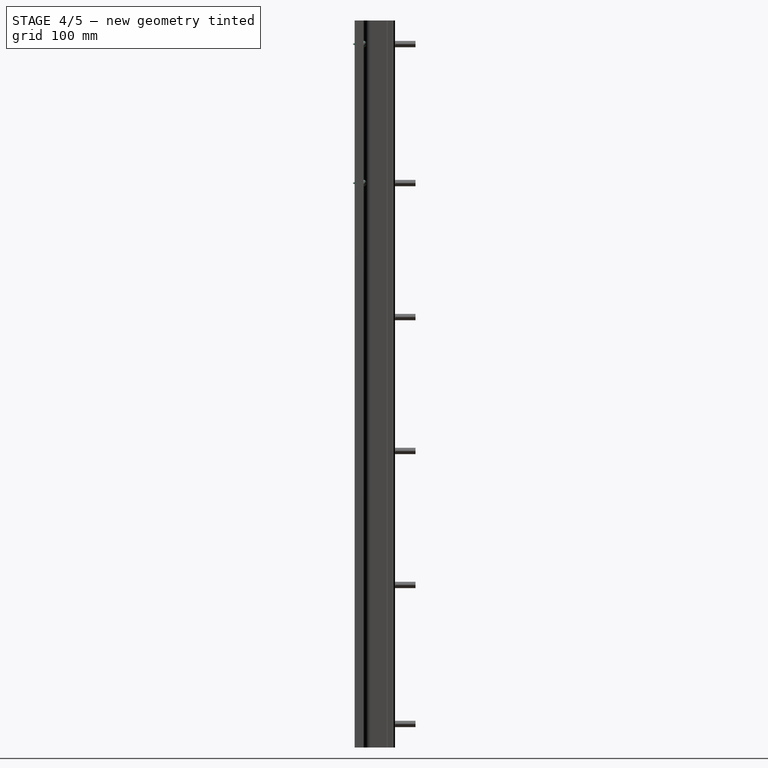
[diagram: stage 4 of 5 — right view after this stage's code; geometry added in this stage tinted green]
FEATURE [Part::FeaturePython] Screw005  label="ST2.9x9.5-Screw274"  # WARN: FeaturePython — macro-defined, semantics opaque (R4)
  BaseObject = -> Body [Pocket002.Edge76]
  Diameter = 2
  Invert = true
  LeftHanded = false
  Length = 1
  LengthCustom = 9.5
  MatchOuter = false
  OffsetAngle = 0
  Placement = pos=(16.002,2.53845,486.792) rot=(-1,0,0;1.5708rad)
  Thread = true
  Type = 81
FEATURE [Part::FeaturePython] Screw006  label="ST2.9x9.5-Screw275"  # WARN: FeaturePython — macro-defined, semantics opaque (R4)
  BaseObject = -> Body [Pocket002.Edge75]
  Diameter = 2
  Invert = true
  LeftHanded = false
  Length = 1
  LengthCustom = 9.5
  MatchOuter = false
  OffsetAngle = 0
  Placement = pos=(16.002,2.53845,606.68) rot=(-1,0,0;1.5708rad)
  Thread = true
  Type = 81
FEATURE [Part::FeaturePython] Screw007  label="ST2.9x9.5-Screw276"  # WARN: FeaturePython — macro-defined, semantics opaque (R4)
  BaseObject = -> Body [Pocket002.Edge127]
  Diameter = 2
  Invert = true
  LeftHanded = false
  Length = 1
  LengthCustom = 9.5
  MatchOuter = false
  OffsetAngle = 0
  Placement = pos=(-5.26295,27.7648,140.208) rot=(1,0,0;1.5708rad)
  Thread = false
  Type = 81
FEATURE [Part::FeaturePython] Screw008  label="ST2.9x9.5-Screw277"  # WARN: FeaturePython — macro-defined, semantics opaque (R4)
  BaseObject = -> Body [Pocket002.Edge125]
  Diameter = 2
  Invert = true
  LeftHanded = false
  Length = 1
  LengthCustom = 9.5
  MatchOuter = false
  OffsetAngle = 0
  Placement = pos=(-5.26295,27.7648,255.736) rot=(1,0,0;1.5708rad)
  Thread = false
  Type = 81
FEATURE [Part::FeaturePython] Screw009  label="ST2.9x9.5-Screw278"  # WARN: FeaturePython — macro-defined, semantics opaque (R4)
  BaseObject = -> Body [Pocket002.Edge123]
  Diameter = 2
  Invert = true
  LeftHanded = false
  Length = 1
  LengthCustom = 9.5
  MatchOuter = false
  OffsetAngle = 0
  Placement = pos=(-5.26295,27.7648,371.264) rot=(1,0,0;1.5708rad)
  Thread = false
  Type = 81
FEATURE [Part::FeaturePython] Screw010  label="ST2.9x9.5-Screw279"  # WARN: FeaturePython — macro-defined, semantics opaque (R4)
  BaseObject = -> Body [Pocket002.Edge121]
  Diameter = 2
  Invert = true
  LeftHanded = false
  Length = 1
  LengthCustom = 9.5
  MatchOuter = false
  OffsetAngle = 0
  Placement = pos=(-5.26295,27.7648,486.792) rot=(1,0,0;1.5708rad)
  Thread = false
  Type = 81
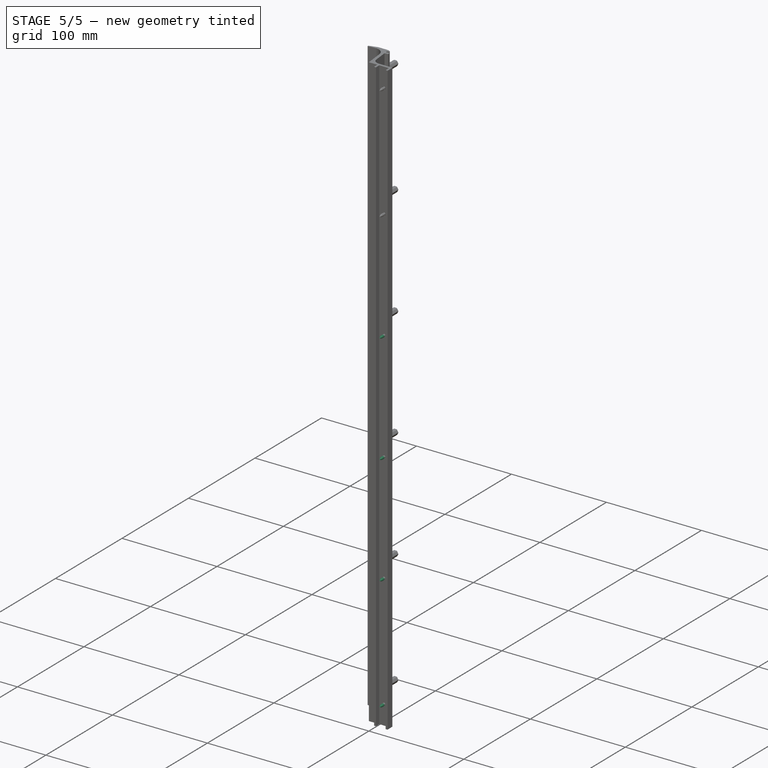
[diagram: stage 5 of 5 — iso view after this stage's code; geometry added in this stage tinted green]
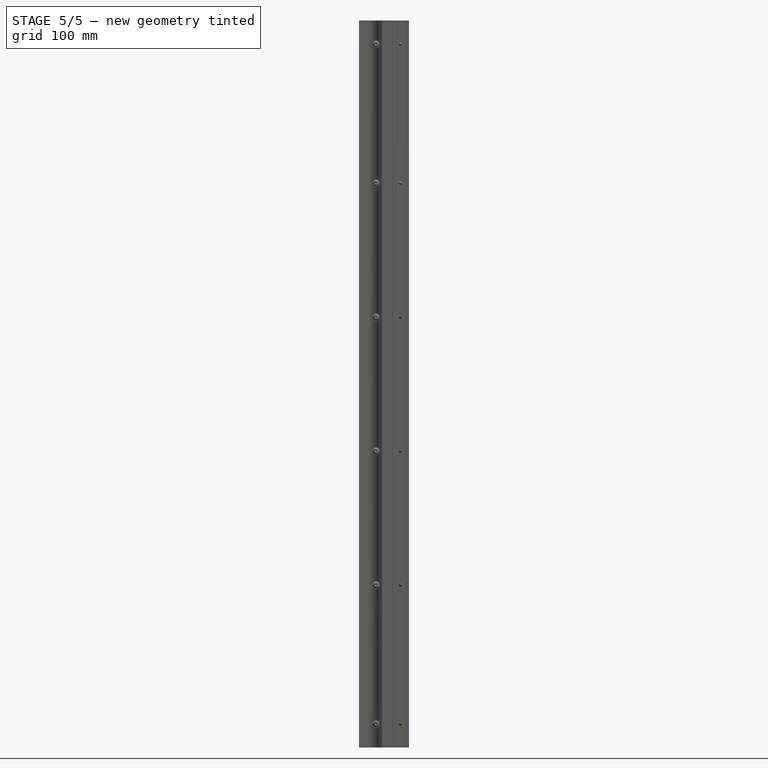
[diagram: stage 5 of 5 — front view after this stage's code; geometry added in this stage tinted green]
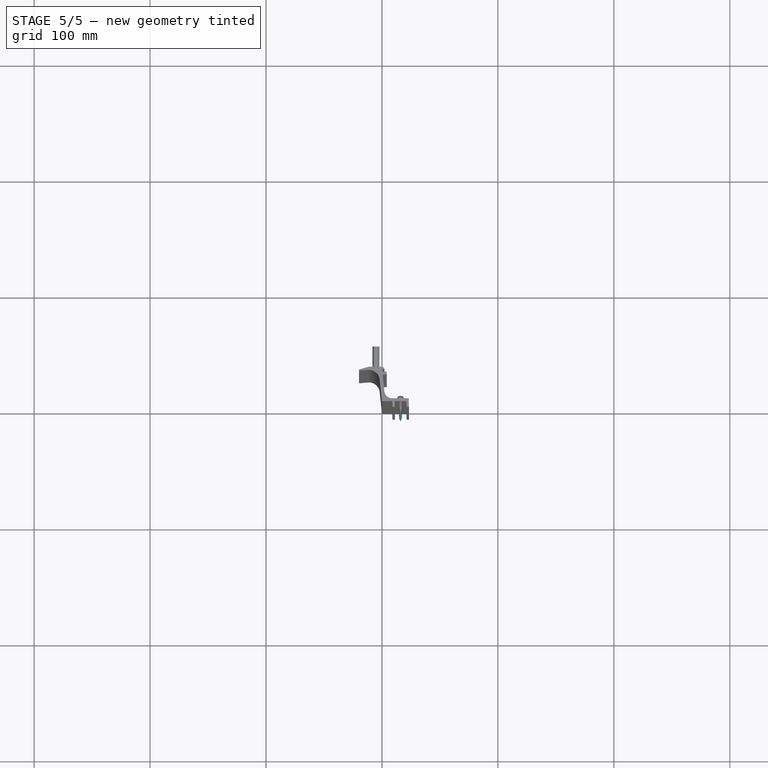
[diagram: stage 5 of 5 — top view after this stage's code; geometry added in this stage tinted green]
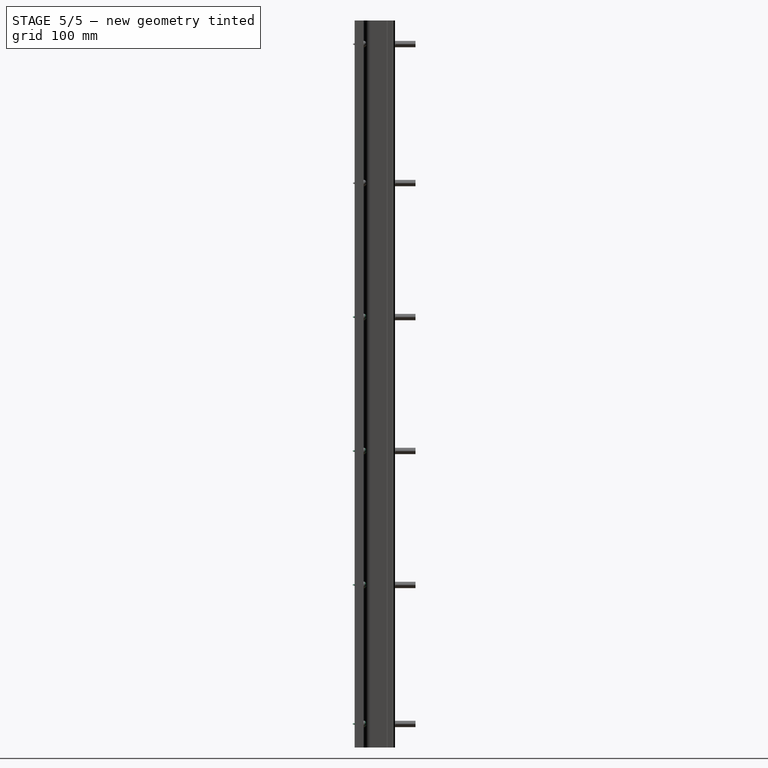
[diagram: stage 5 of 5 — right view after this stage's code; geometry added in this stage tinted green]
FEATURE [Part::FeaturePython] Screw  label="ST2.9x9.5-Screw"  # WARN: FeaturePython — macro-defined, semantics opaque (R4)
  BaseObject = -> Body [Pocket002.Edge129]
  Diameter = 2
  Invert = true
  LeftHanded = false
  Length = 1
  LengthCustom = 9.5
  MatchOuter = false
  OffsetAngle = 0
  Placement = pos=(-5.26295,27.7648,20.32) rot=(1,0,0;1.5708rad)
  Thread = false
  Type = 81
FEATURE [Part::FeaturePython] Screw001  label="ST2.9x9.5-Screw270"  # WARN: FeaturePython — macro-defined, semantics opaque (R4)
  BaseObject = -> Body [Pocket002.Edge80]
  Diameter = 2
  Invert = true
  LeftHanded = false
  Length = 1
  LengthCustom = 9.5
  MatchOuter = false
  OffsetAngle = 0
  Placement = pos=(16.002,2.53845,20.32) rot=(-1,0,0;1.5708rad)
  Thread = true
  Type = 81
FEATURE [Part::FeaturePython] Screw002  label="ST2.9x9.5-Screw271"  # WARN: FeaturePython — macro-defined, semantics opaque (R4)
  BaseObject = -> Body [Pocket002.Edge79]
  Diameter = 2
  Invert = true
  LeftHanded = false
  Length = 1
  LengthCustom = 9.5
  MatchOuter = false
  OffsetAngle = 0
  Placement = pos=(16.002,2.53845,140.208) rot=(-1,0,0;1.5708rad)
  Thread = true
  Type = 81
FEATURE [Part::FeaturePython] Screw003  label="ST2.9x9.5-Screw272"  # WARN: FeaturePython — macro-defined, semantics opaque (R4)
  BaseObject = -> Body [Pocket002.Edge78]
  Diameter = 2
  Invert = true
  LeftHanded = false
  Length = 1
  LengthCustom = 9.5
  MatchOuter = false
  OffsetAngle = 0
  Placement = pos=(16.002,2.53845,255.736) rot=(-1,0,0;1.5708rad)
  Thread = true
  Type = 81
FEATURE [Part::FeaturePython] Screw004  label="ST2.9x9.5-Screw273"  # WARN: FeaturePython — macro-defined, semantics opaque (R4)
  BaseObject = -> Body [Pocket002.Edge77]
  Diameter = 2
  Invert = true
  LeftHanded = false
  Length = 1
  LengthCustom = 9.5
  MatchOuter = false
  OffsetAngle = 0
  Placement = pos=(16.002,2.53845,371.264) rot=(-1,0,0;1.5708rad)
  Thread = true
  Type = 81
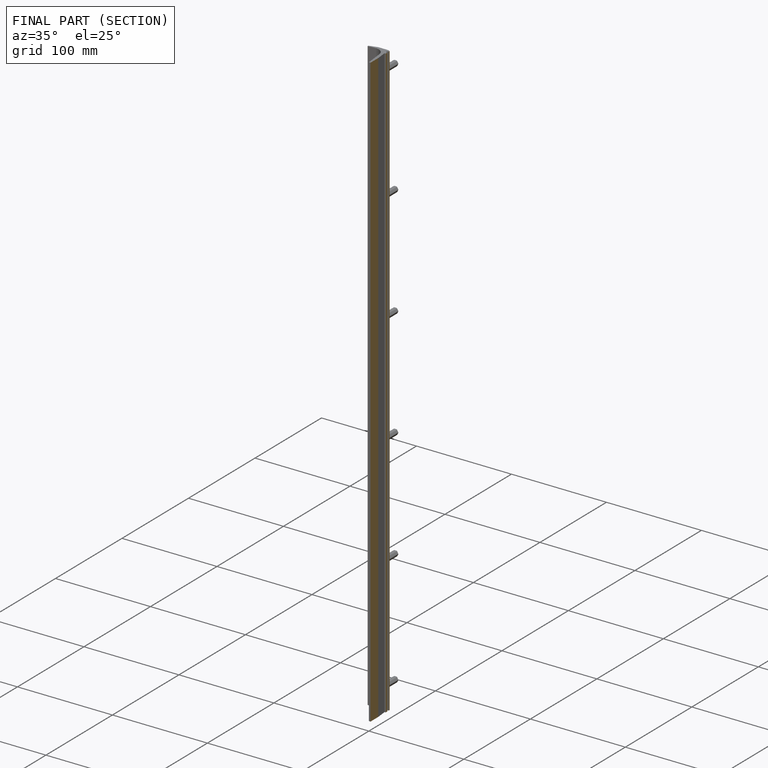
[diagram: finished part — half-section view (interior)]
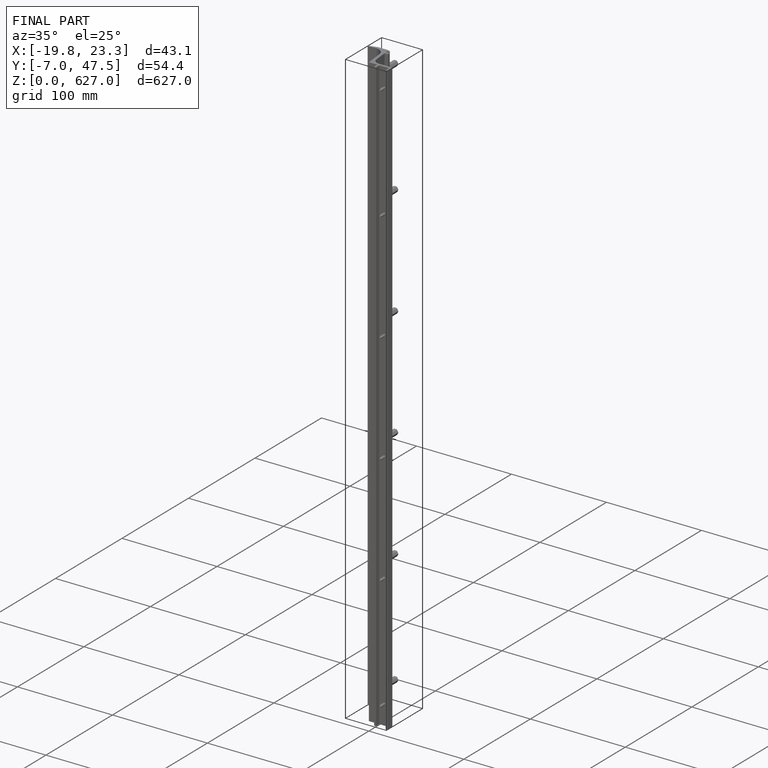
[diagram: finished part — iso view with bounding-box wireframe]
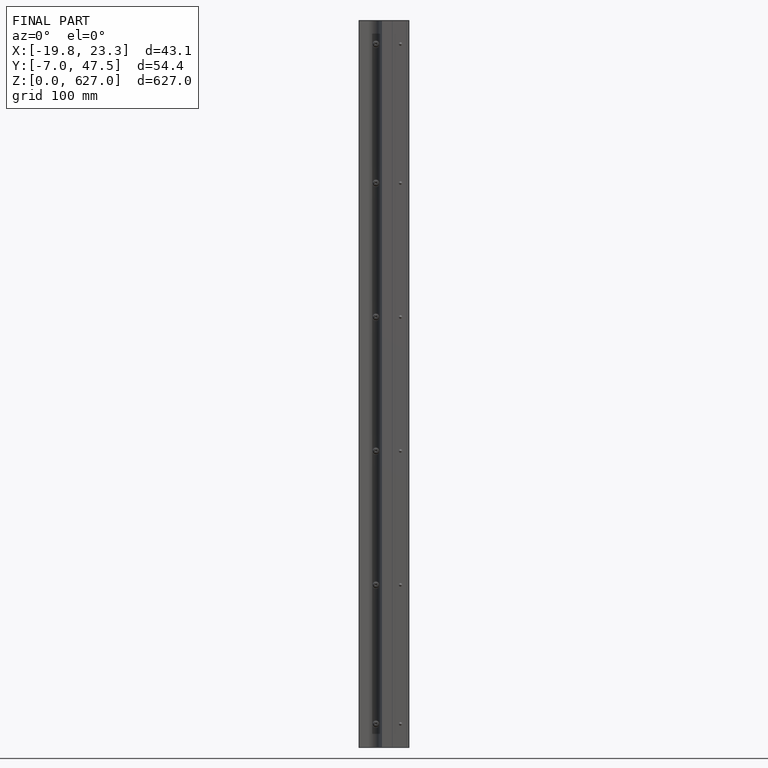
[diagram: finished part — front view with bounding-box wireframe]
